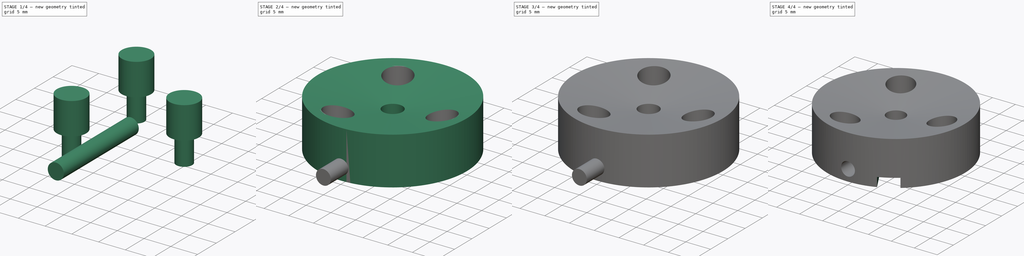
[diagram: build sequence overview — one tinted view per stage of 4, left to right]
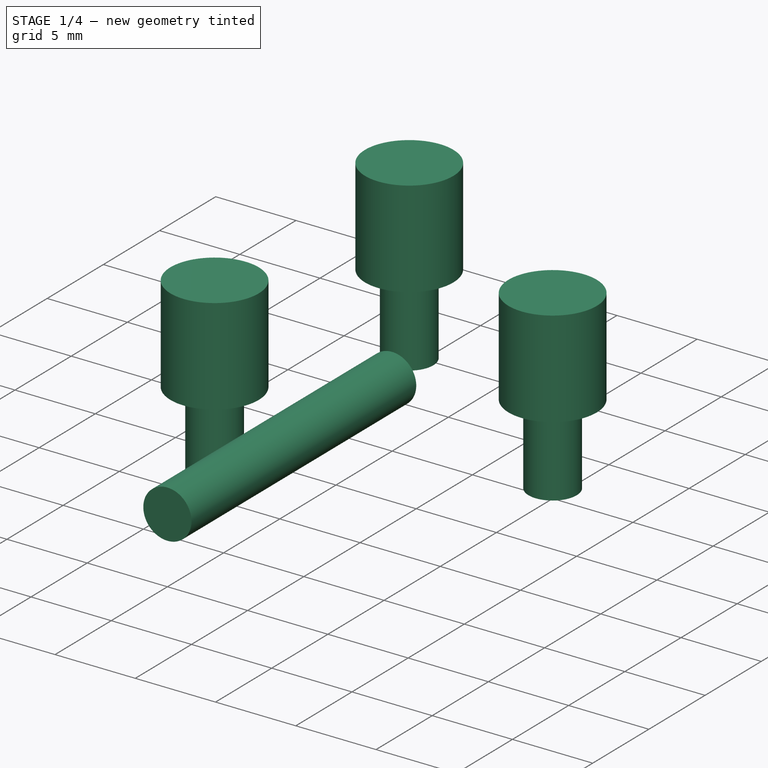
[diagram: stage 1 of 4 — iso view after this stage's code; geometry added in this stage tinted green]
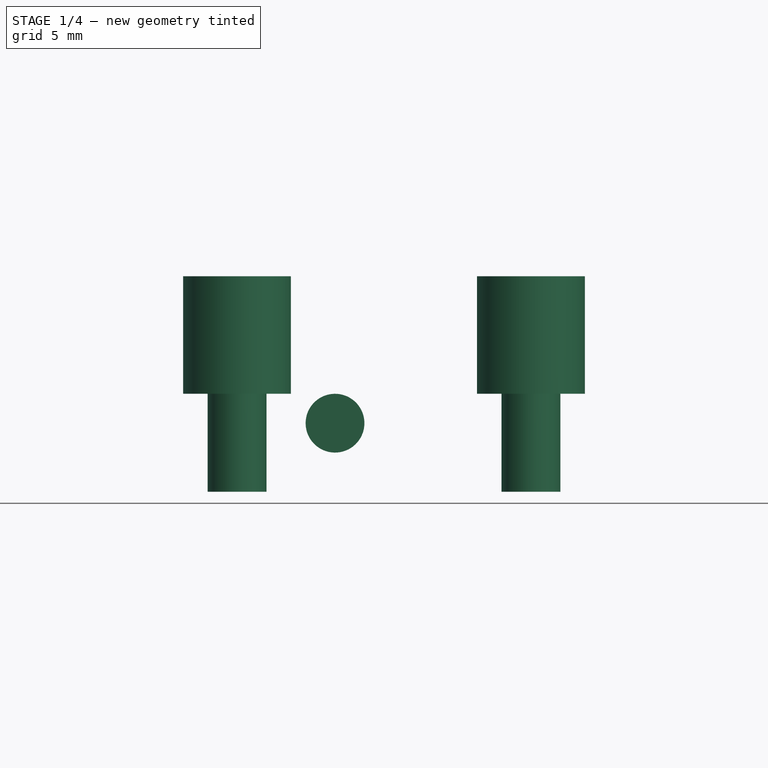
[diagram: stage 1 of 4 — front view after this stage's code; geometry added in this stage tinted green]
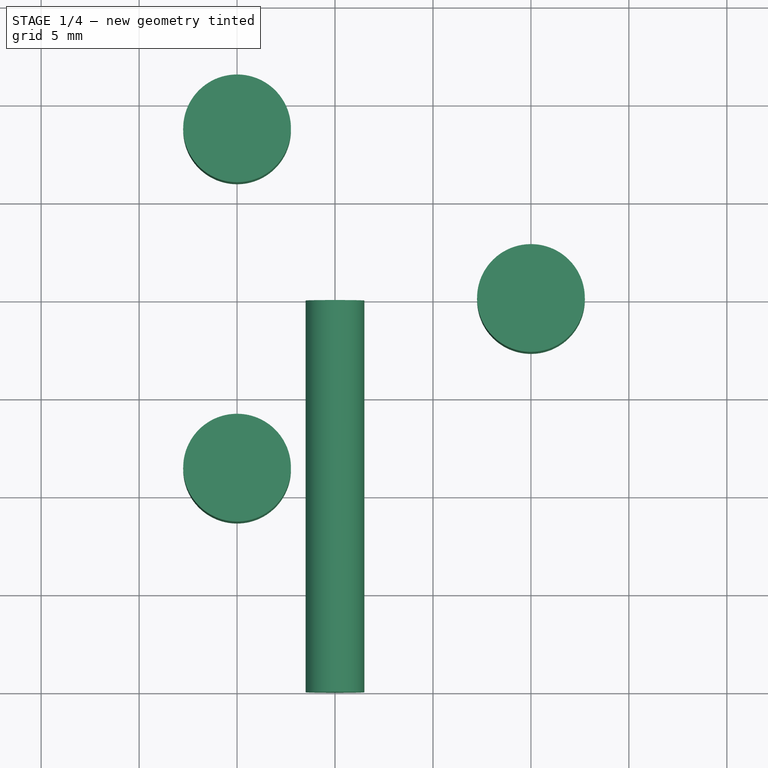
[diagram: stage 1 of 4 — top view after this stage's code; geometry added in this stage tinted green]
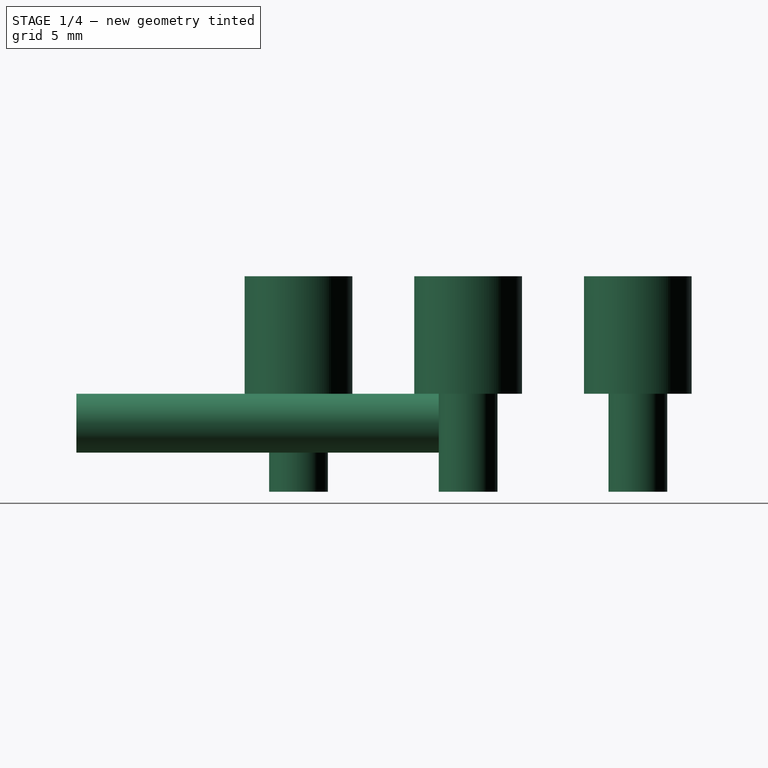
[diagram: stage 1 of 4 — right view after this stage's code; geometry added in this stage tinted green]
FCSTD DOCUMENT  (FreeCAD 0.15R4671 (Git))
Label: base
License: All rights reserved
LicenseURL: http://en.wikipedia.org/wiki/All_rights_reserved
objects: Sketcher::SketchObject×7, PartDesign::Pocket×4, Part::Cut×2, PartDesign::Revolution×1, Part::Revolution×1, Part::FeaturePython×1, PartDesign::PolarPattern×1, PartDesign::Pad×1
note: 24 computed .brp shape members not serialized (recipe doc carries the construction recipe); baked Part::Feature solids carry a one-line shape summary decoded from their .brp

FEATURE [Sketcher::SketchObject] Sketch002
  Placement = pos=(0,0,0) rot=(1,0,0;1.5708rad)
  sketch-geometry (6):
    g0: LineSegment StartX=7.25 StartY=10 StartZ=0 EndX=7.25 EndY=4 EndZ=0
    g1: LineSegment StartX=7.25 StartY=4 StartZ=0 EndX=8.5 EndY=4 EndZ=0
    g2: LineSegment StartX=8.5 StartY=4 StartZ=0 EndX=8.5 EndY=-1 EndZ=0
    g3: LineSegment StartX=8.5 StartY=-1 StartZ=0 EndX=10 EndY=-1 EndZ=0
    g4: LineSegment StartX=10 StartY=-1 StartZ=0 EndX=10 EndY=10 EndZ=0
    g5: LineSegment StartX=10 StartY=10 StartZ=0 EndX=7.25 EndY=10 EndZ=0
  constraints (18):
    c: Vertical(g0)
    c: Coincident(g0,g1)
    c: Horizontal(g1)
    c: Coincident(g1,g2)
    c: Vertical(g2)
    c: Coincident(g2,g3)
    c: Coincident(g3,g4)
    c: Vertical(g4)
    c: Coincident(g4,g5)
    c: Coincident(g5,g0)
    c: Horizontal(g5)
    c: DistanceX(g5) = -2.75
    c: Horizontal(g3)
    c: DistanceY(g-1,g2) = -1
    c: DistanceY(g-1,g1) = 4
    c: DistanceX(g3) = 1.5
    c: DistanceY(g0) = -6
    c: DistanceX(g-1,g3) = 10
FEATURE [Part::Revolution] Revolve
  Angle = 360
  Axis = (0,0,1)
  Base = (10,0,-1)
  Solid = true
  Source = -> Sketch002
FEATURE [Part::FeaturePython] Array  # Draft array (typed FeaturePython)
  Angle = 360
  ArrayType = 1
  Axis = (0,0,1)
  Base = -> Revolve
  Center = (0,0,0)
  Fuse = false
  IntervalAxis = (0,0,0)
  IntervalX = (1,0,0)
  IntervalY = (0,1,0)
  IntervalZ = (0,0,0)
  NumberPolar = 3
  NumberX = 2
  NumberY = 2
  NumberZ = 1
FEATURE [Sketcher::SketchObject] Sketch005
  Placement = pos=(0,0,0) rot=(1,0,0;1.5708rad)
  sketch-geometry (1):
    g0: Circle CenterX=0 CenterY=2.5 CenterZ=0 NormalX=0 NormalY=0 NormalZ=1 Radius=1.5
  constraints (3):
    c: PointOnObject(g0,g-2)
    c: Radius(g0) = 1.5
    c: DistanceY(g-1,g0) = 2.5
FEATURE [PartDesign::Pad] Pad
  Length = 20
  Length2 = 100
  Placement = pos=(0,0,0) rot=(1,0,0;1.5708rad)
  Sketch = -> Sketch005
  Type = 0
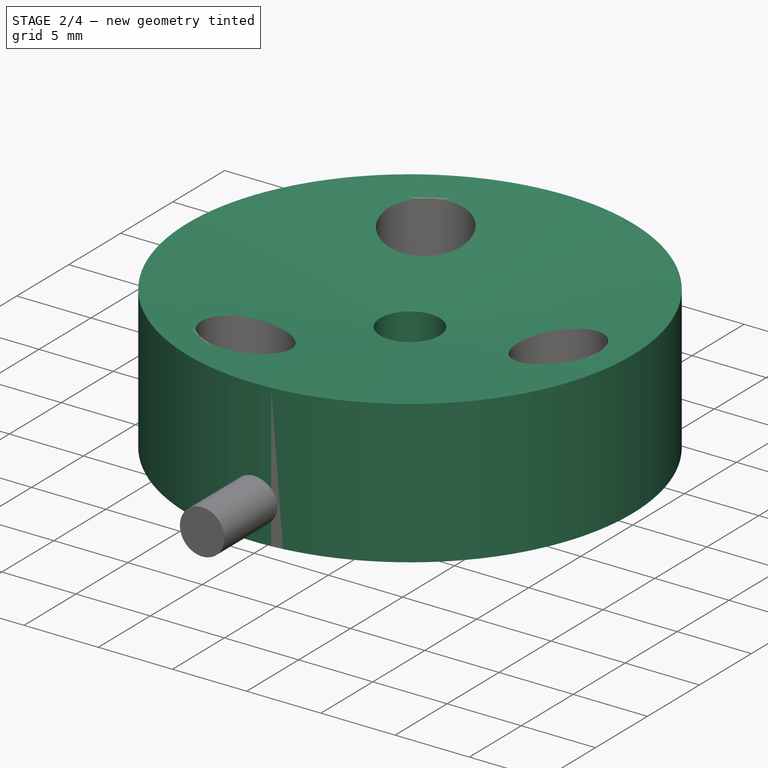
[diagram: stage 2 of 4 — iso view after this stage's code; geometry added in this stage tinted green]
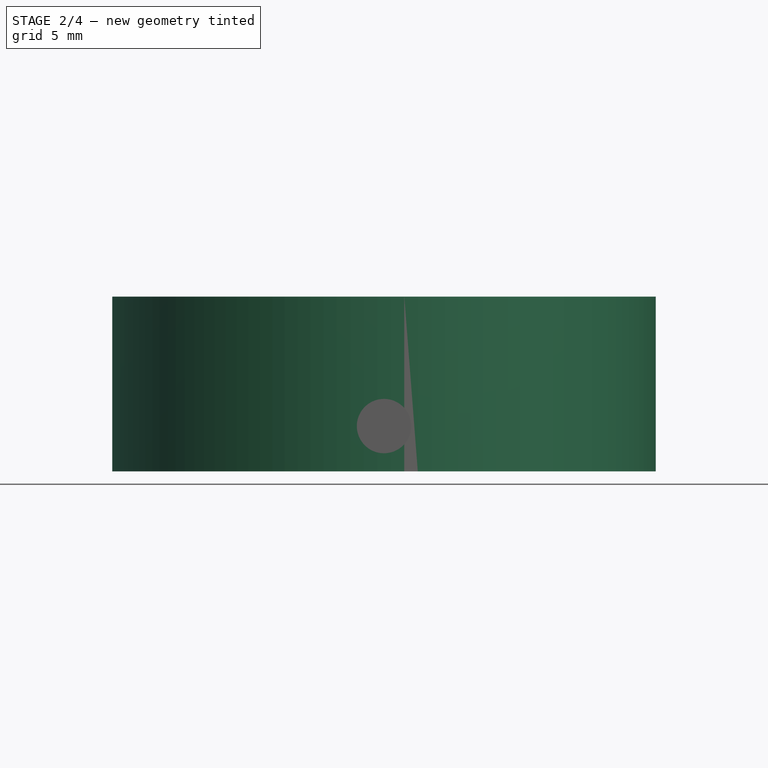
[diagram: stage 2 of 4 — front view after this stage's code; geometry added in this stage tinted green]
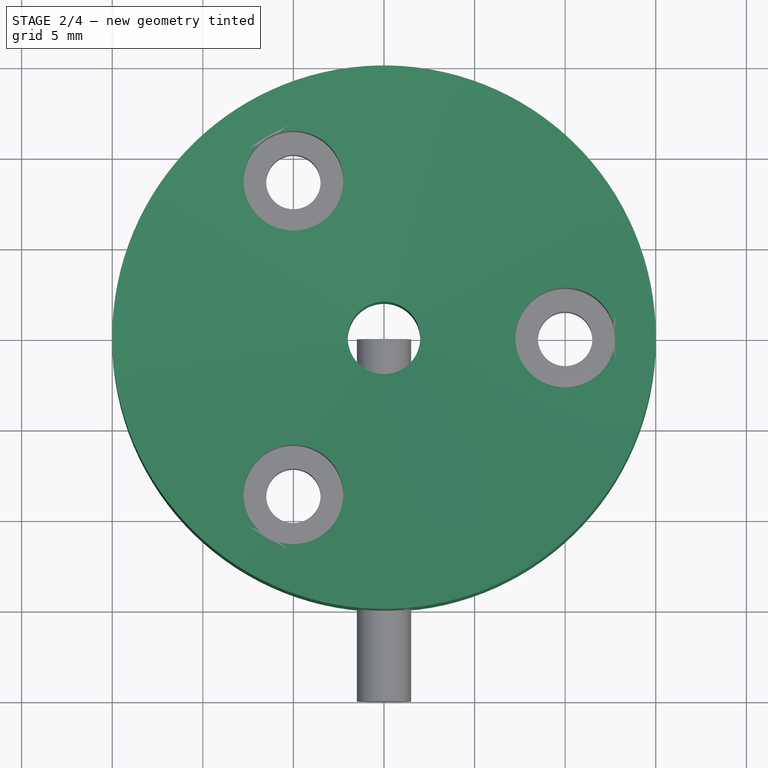
[diagram: stage 2 of 4 — top view after this stage's code; geometry added in this stage tinted green]
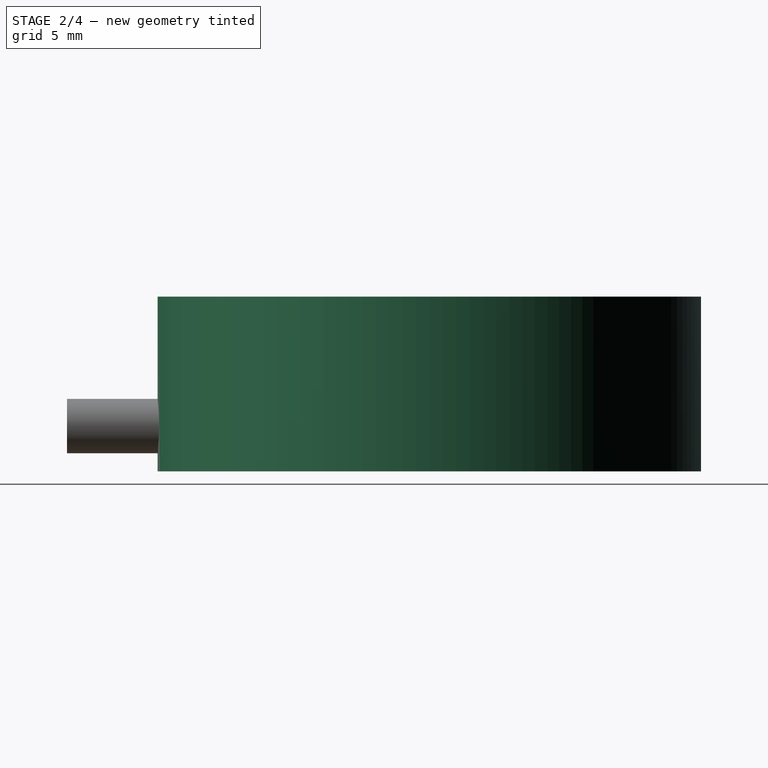
[diagram: stage 2 of 4 — right view after this stage's code; geometry added in this stage tinted green]
FEATURE [Sketcher::SketchObject] Sketch
  Placement = pos=(0,0,0) rot=(1,0,0;1.5708rad)
  sketch-geometry (4):
    g0: LineSegment StartX=0 StartY=0 StartZ=0 EndX=15 EndY=0 EndZ=0
    g1: LineSegment StartX=15 StartY=0 StartZ=0 EndX=15 EndY=9.6449 EndZ=0
    g2: LineSegment StartX=15 StartY=9.6449 StartZ=0 EndX=0 EndY=7 EndZ=0
    g3: LineSegment StartX=0 StartY=7 StartZ=0 EndX=0 EndY=0 EndZ=0
  constraints (11):
    c: Coincident(g0,g-1)
    c: PointOnObject(g0,g-1)
    c: Coincident(g0,g1)
    c: Vertical(g1)
    c: Coincident(g1,g2)
    c: Coincident(g2,g3)
    c: Coincident(g3,g-1)
    c: Vertical(g3)
    c: DistanceX(g0) = 15
    c: DistanceY(g3) = -7
    c: Angle(g3,g2) = 1.74533
FEATURE [PartDesign::Revolution] Revolution
  Angle = 360
  Axis = (0,0,1)
  Base = (0,0,0)
  Placement = pos=(0,0,0) rot=(1,0,0;1.5708rad)
  ReferenceAxis = -> Sketch [V_Axis]
  Reversed = true
  Sketch = -> Sketch
FEATURE [Sketcher::SketchObject] Sketch001
  Placement = pos=(0,0,0) rot=(1,0,0;3.14159rad)
  Support = -> Revolution [Face1]
  sketch-geometry (1):
    g0: Circle CenterX=0 CenterY=0 CenterZ=0 NormalX=0 NormalY=0 NormalZ=1 Radius=2
  constraints (2):
    c: Coincident(g0,g-1)
    c: Radius(g0) = 2
FEATURE [PartDesign::Pocket] Pocket
  Length = 0
  Placement = pos=(0,0,0) rot=(1,0,0;1.5708rad)
  Sketch = -> Sketch001
  Type = 2
FEATURE [Part::Cut] Cut
  Base = -> Pocket
  Tool = -> Array
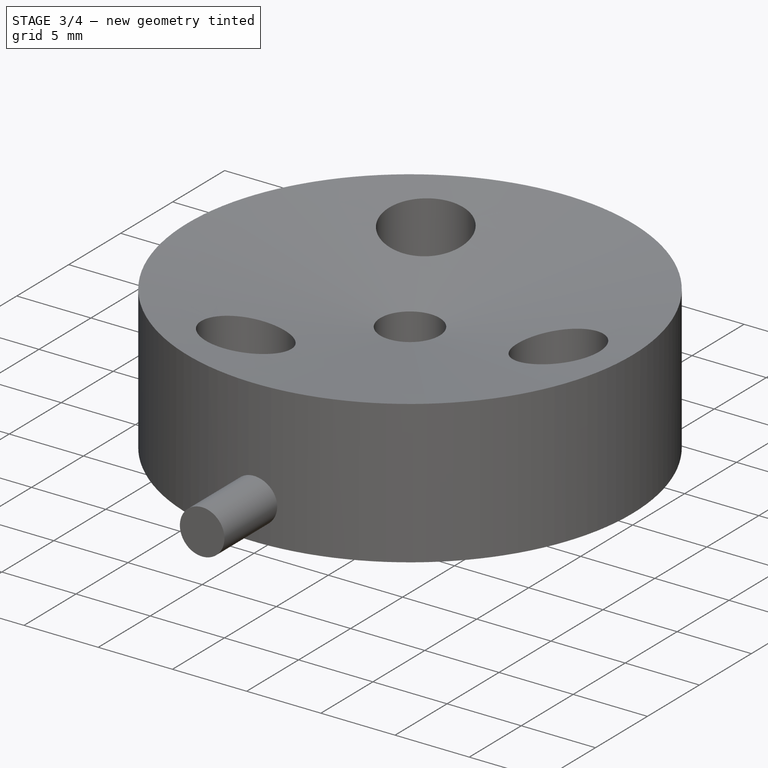
[diagram: stage 3 of 4 — iso view after this stage's code; geometry added in this stage tinted green]
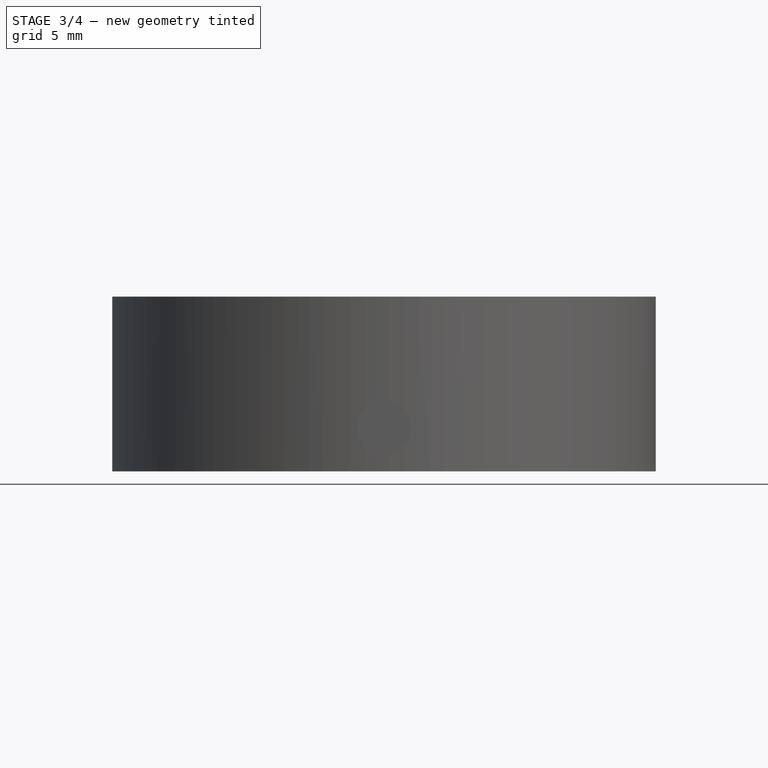
[diagram: stage 3 of 4 — front view after this stage's code; geometry added in this stage tinted green]
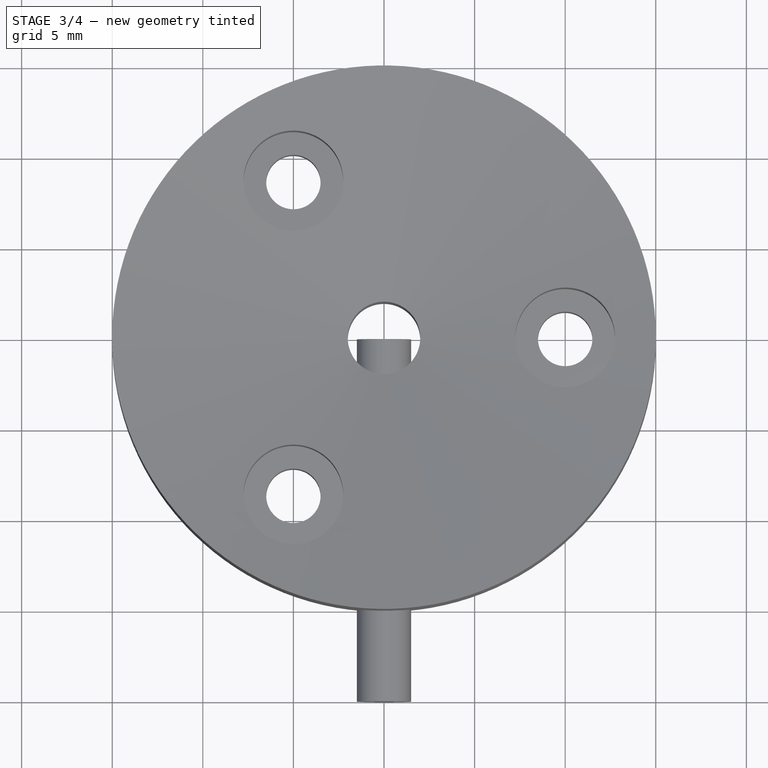
[diagram: stage 3 of 4 — top view after this stage's code; geometry added in this stage tinted green]
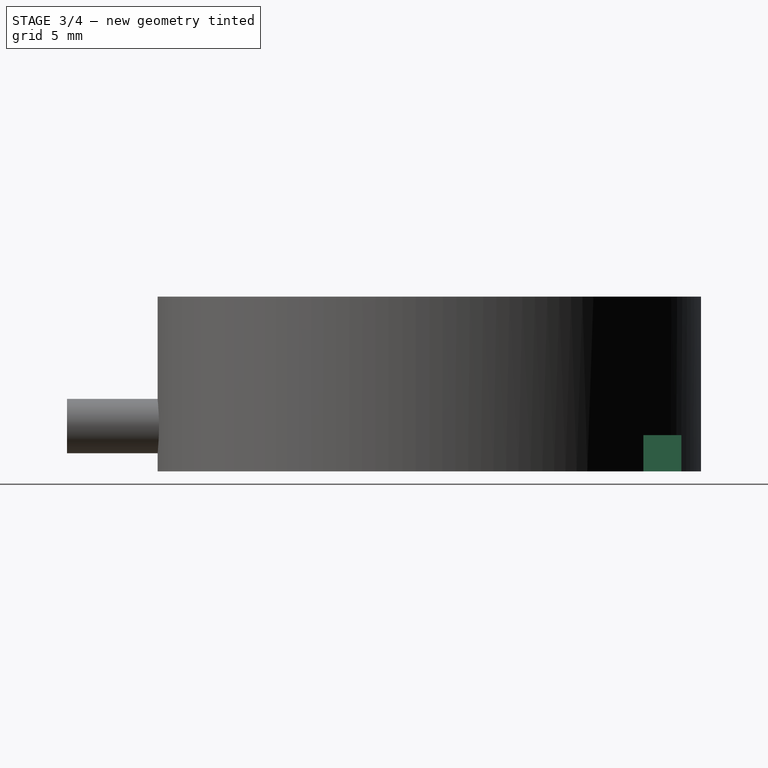
[diagram: stage 3 of 4 — right view after this stage's code; geometry added in this stage tinted green]
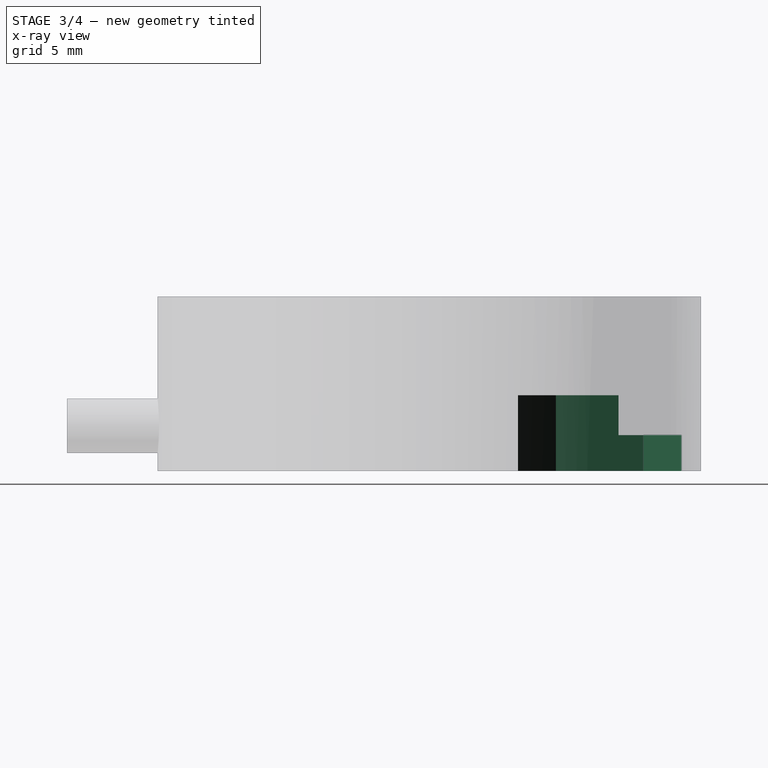
[diagram: stage 3 of 4 — x-ray composite at the right view; earlier geometry ghosted, this stage's added geometry solid]
FEATURE [Sketcher::SketchObject] Sketch003
  ExternalGeometry = -> [Cut]
  Placement = pos=(0,0,0) rot=(1,0,0;3.14159rad)
  Support = -> Cut [Face1]
  sketch-geometry (5):
    g0: LineSegment [constr] StartX=0 StartY=0 StartZ=0 EndX=7.5 EndY=-12.9904 EndZ=0
    g1: LineSegment StartX=9.24479 StartY=-11.8124 StartZ=0 EndX=5.24479 EndY=-4.88424 EndZ=0
    g2: LineSegment StartX=5.24479 StartY=-4.88424 StartZ=0 EndX=1.60748 EndY=-6.98424 EndZ=0
    g3: LineSegment StartX=1.60748 StartY=-6.98424 StartZ=0 EndX=5.60748 EndY=-13.9124 EndZ=0
    g4: ArcOfCircle CenterX=0 CenterY=0 CenterZ=0 NormalX=0 NormalY=0 NormalZ=1 Radius=15 StartAngle=5.09553 EndAngle=5.37645
  constraints (16):
    c: Coincident(g0,g-1)
    c: PointOnObject(g0,g-3)
    c: Angle(g0,g-1) = 1.0472
    c: PointOnObject(g1,g-3)
    c: Coincident(g1,g2)
    c: Coincident(g2,g3)
    c: PointOnObject(g3,g-3)
    c: Perpendicular(g0,g2)
    c: Symmetric(g1,g2,g0)
    c: Parallel(g1,g3)
    c: Perpendicular(g2,g3)
    c: Distance(g2) = 4.2
    c: Distance(g1) = 8
    c: Coincident(g4,g-1)
    c: Coincident(g4,g1)
    c: Coincident(g4,g3)
FEATURE [PartDesign::Pocket] Pocket001
  Length = 2
  Sketch = -> Sketch003
  Type = 0
FEATURE [Sketcher::SketchObject] Sketch004
  ExternalGeometry = -> [Pocket001]
  Placement = pos=(0,0,2) rot=(1,0,0;3.14159rad)
  Support = -> Pocket001 [Face11]
  sketch-geometry (4):
    g0: LineSegment StartX=5.24479 StartY=-4.88424 StartZ=0 EndX=7.24479 EndY=-8.34834 EndZ=0
    g1: LineSegment StartX=5.24479 StartY=-4.88424 StartZ=0 EndX=1.60748 EndY=-6.98424 EndZ=0
    g2: LineSegment StartX=1.60748 StartY=-6.98424 StartZ=0 EndX=3.60748 EndY=-10.4483 EndZ=0
    g3: LineSegment StartX=3.60748 StartY=-10.4483 StartZ=0 EndX=7.24479 EndY=-8.34834 EndZ=0
  constraints (10):
    c: Coincident(g0,g-4)
    c: PointOnObject(g0,g-4)
    c: Coincident(g0,g1)
    c: Coincident(g1,g-3)
    c: Coincident(g1,g2)
    c: Coincident(g2,g3)
    c: Coincident(g3,g0)
    c: Parallel(g-3,g3)
    c: Equal(g-3,g3)
    c: Distance(g2) = 4
FEATURE [PartDesign::Pocket] Pocket002
  Length = 2.2
  Sketch = -> Sketch004
  Type = 0
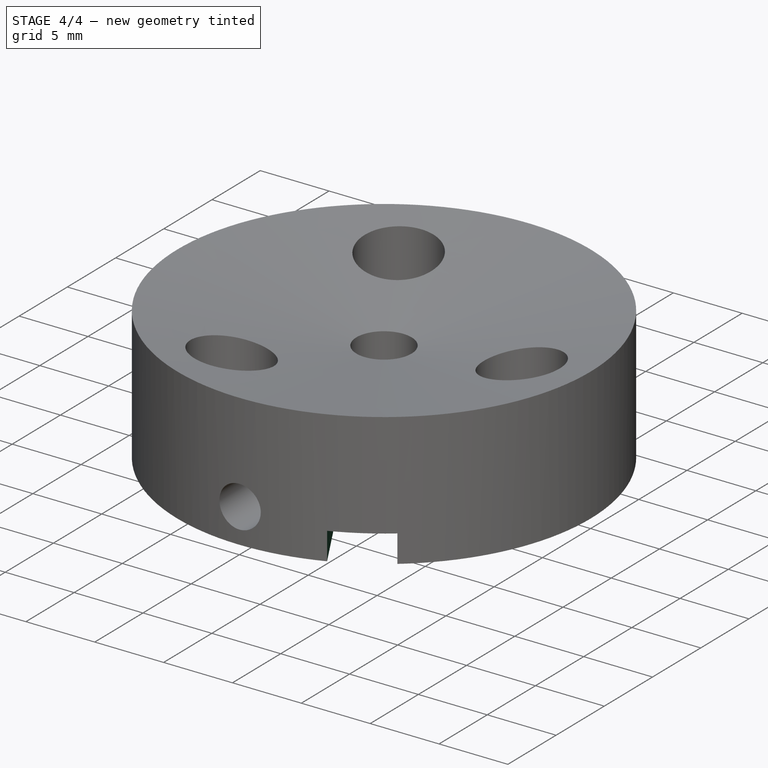
[diagram: stage 4 of 4 — iso view after this stage's code; geometry added in this stage tinted green]
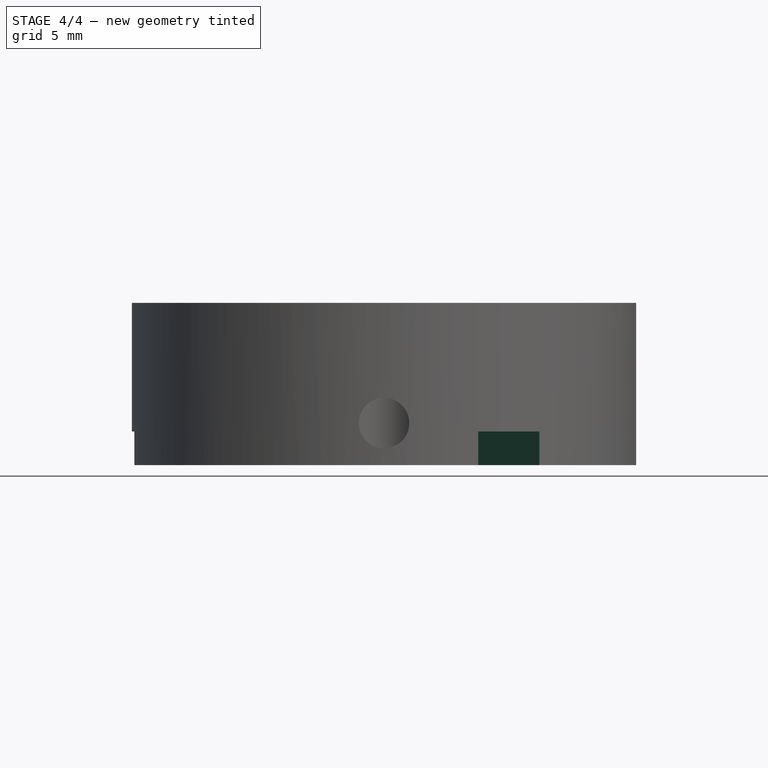
[diagram: stage 4 of 4 — front view after this stage's code; geometry added in this stage tinted green]
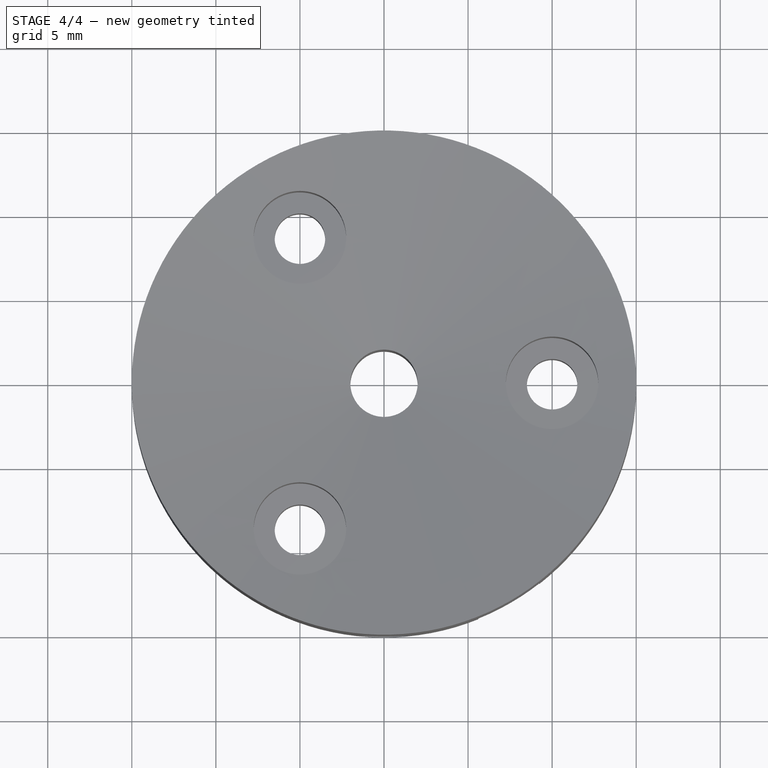
[diagram: stage 4 of 4 — top view after this stage's code; geometry added in this stage tinted green]
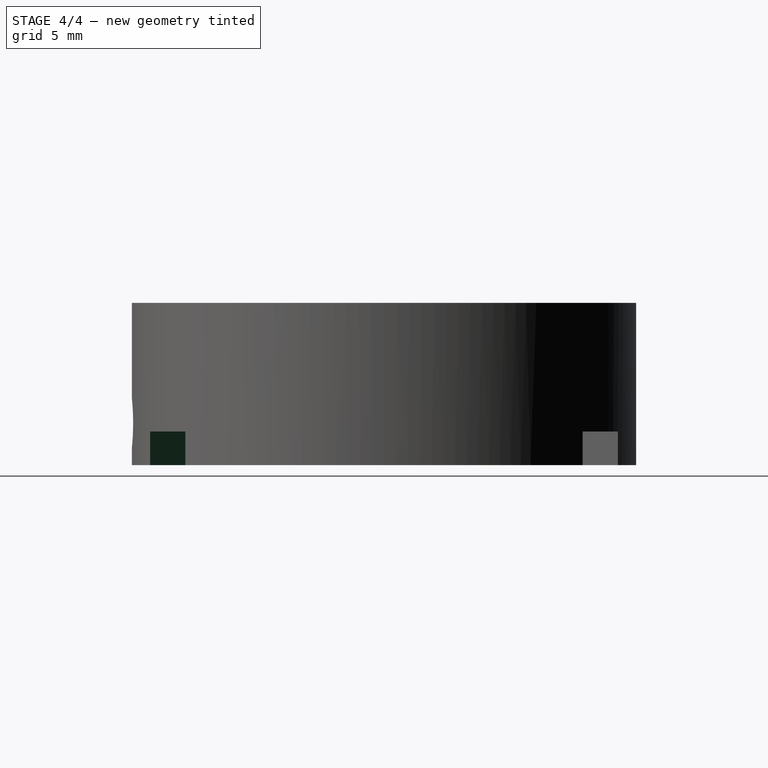
[diagram: stage 4 of 4 — right view after this stage's code; geometry added in this stage tinted green]
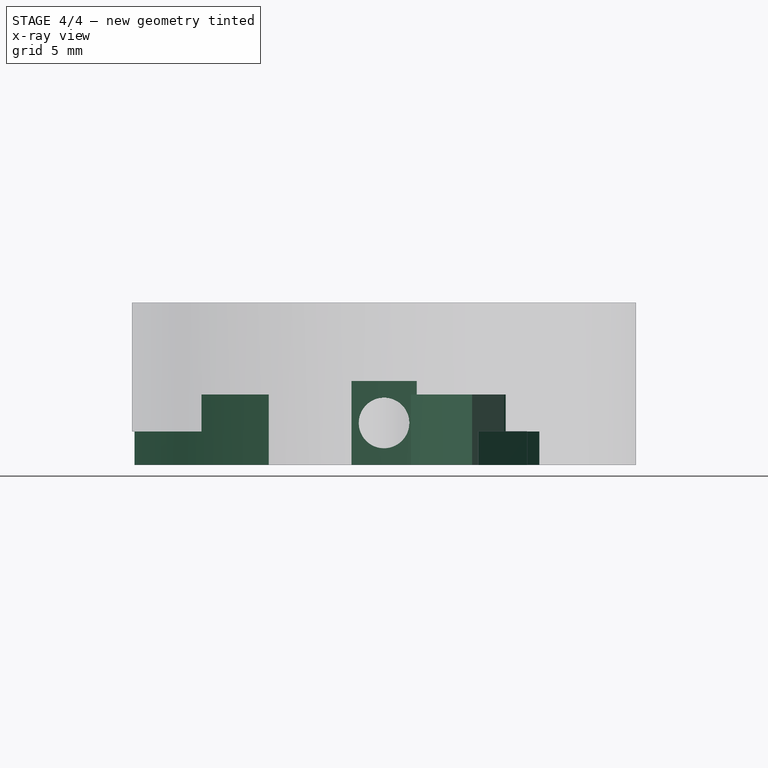
[diagram: stage 4 of 4 — x-ray composite at the front view; earlier geometry ghosted, this stage's added geometry solid]
FEATURE [PartDesign::PolarPattern] PolarPattern
  Angle = 360
  Axis = -> Sketch004 [N_Axis]
  Occurrences = 3
  Originals = -> [Pocket002,Pocket001]
FEATURE [Part::Cut] Cut001
  Base = -> PolarPattern
  Tool = -> Pad
FEATURE [Sketcher::SketchObject] Sketch006
  Placement = pos=(0,0,0) rot=(1,0,0;3.14159rad)
  Support = -> Cut001 [Face1]
  sketch-geometry (4):
    g0: LineSegment StartX=-1.95 StartY=6.5 StartZ=0 EndX=1.95 EndY=6.5 EndZ=0
    g1: LineSegment StartX=1.95 StartY=6.5 StartZ=0 EndX=1.95 EndY=2.5 EndZ=0
    g2: LineSegment StartX=1.95 StartY=2.5 StartZ=0 EndX=-1.95 EndY=2.5 EndZ=0
    g3: LineSegment StartX=-1.95 StartY=2.5 StartZ=0 EndX=-1.95 EndY=6.5 EndZ=0
  constraints (12):
    c: Coincident(g0,g1)
    c: Coincident(g1,g2)
    c: Coincident(g2,g3)
    c: Coincident(g3,g0)
    c: Horizontal(g0)
    c: Horizontal(g2)
    c: Vertical(g1)
    c: Vertical(g3)
    c: Symmetric(g1,g2,g-2)
    c: DistanceY(g3) = 4
    c: DistanceX(g0) = 3.9
    c: DistanceY(g-1,g1) = 2.5
FEATURE [PartDesign::Pocket] Pocket003
  Length = 5
  Sketch = -> Sketch006
  Type = 0
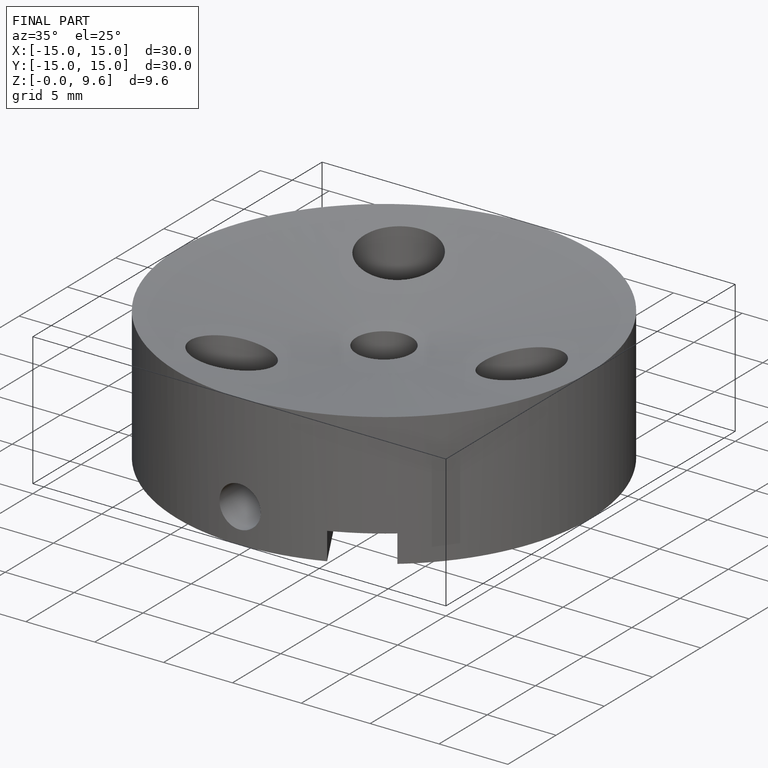
[diagram: finished part — iso view with bounding-box wireframe]
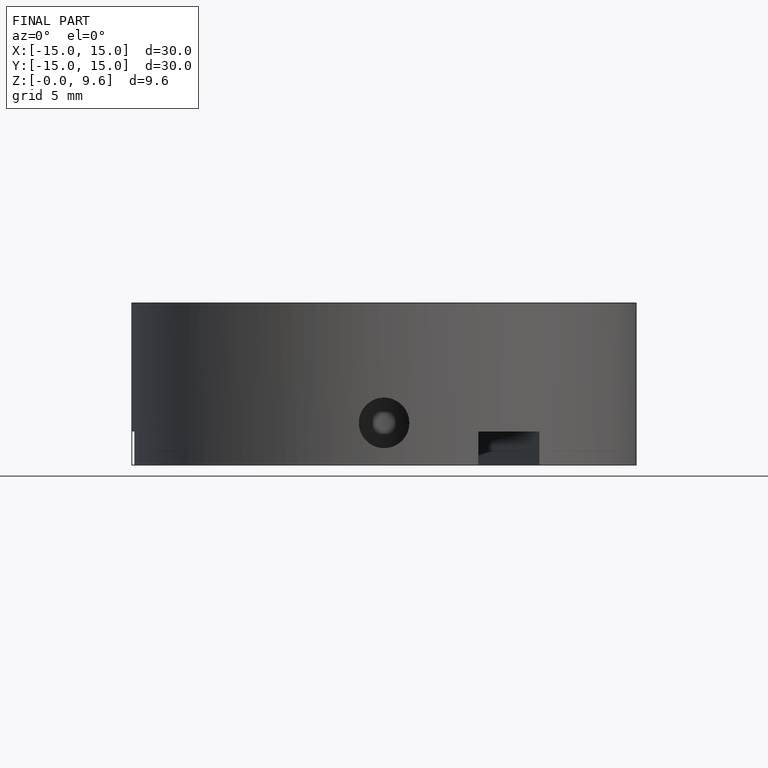
[diagram: finished part — front view with bounding-box wireframe]
